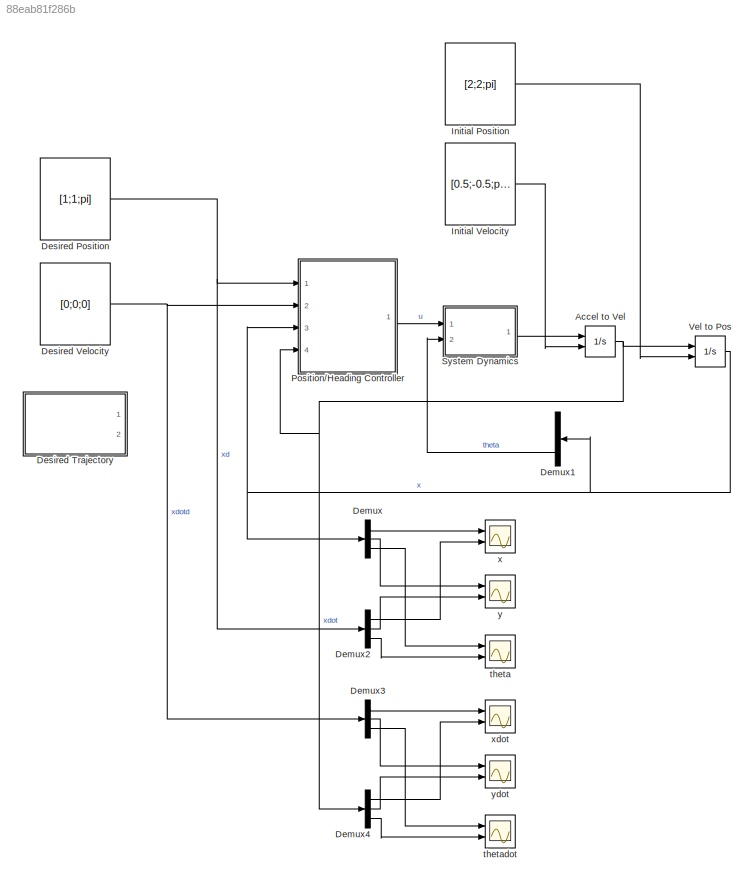
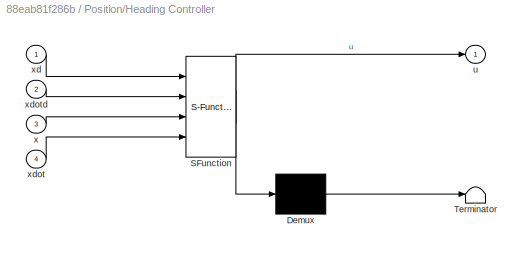
MODEL slx_88eab81f286b
KIND model
CONFIG AbsTol = auto
CONFIG EnableMultiTasking = off
CONFIG FixedStep = 0.1
CONFIG MaxStep = auto
CONFIG MinStep = auto
CONFIG RelTol = 1e-3
CONFIG SampleTimeConstraint = Unconstrained
CONFIG Solver = FixedStepAuto
CONFIG SolverName = FixedStepAuto
CONFIG StartTime = 0.0
CONFIG StopTime = 60
BLOCK [Integrator] Accel to Vel
  InitialCondition = [0;0;0]
  InitialConditionSource = external
  Ports = [2, 1]
BLOCK [Demux] Demux
  DisplayOption = bar
  Outputs = 3
  Ports = [1, 3]
BLOCK [Demux] Demux1
  DisplayOption = bar
  Outputs = 3
  Ports = [1, 3]
BLOCK [Demux] Demux2
  DisplayOption = bar
  Outputs = 3
  Ports = [1, 3]
BLOCK [Demux] Demux3
  DisplayOption = bar
  Outputs = 3
  Ports = [1, 3]
BLOCK [Demux] Demux4
  DisplayOption = bar
  Outputs = 3
  Ports = [1, 3]
BLOCK [Constant] Desired Position
  Value = [1;1;pi]
  VectorParams1D = off
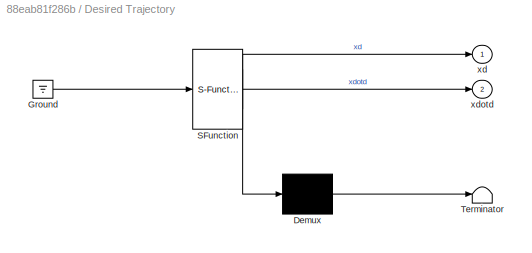
BLOCK [SubSystem] Desired Trajectory
  Commented = on
  ErrorFcn = Stateflow.Translate.translate
  PermitHierarchicalResolution = ExplicitOnly
  Ports = [0, 2]
  RequestExecContextInheritance = off
  SFBlockType = MATLAB Function
  TreatAsAtomicUnit = on
BLOCK [Demux] Desired Trajectory/ Demux 
  Outputs = 1
  Ports = [1, 1]
BLOCK [Ground] Desired Trajectory/ Ground 
BLOCK [S-Function] Desired Trajectory/ SFunction 
  EnableBusSupport = on
  FunctionName = sf_sfun
  PortCounts = [1 3]
  Ports = [1, 3]
  SFcnIsStateOwnerBlock = off
  SFunctionDeploymentMode = off
  Tag = Stateflow S-Function controller_2018a 2
BLOCK [Terminator] Desired Trajectory/ Terminator 
BLOCK [Outport] Desired Trajectory/xd
  IconDisplay = Port number
BLOCK [Outport] Desired Trajectory/xdotd
  IconDisplay = Port number
  Port = 2
BLOCK [Constant] Desired Velocity
  Value = [0;0;0]
  VectorParams1D = off
BLOCK [Constant] Initial Position
  Value = [2;2;pi]
  VectorParams1D = off
BLOCK [Constant] Initial Velocity
  Value = [0.5;-0.5;pi/8]
  VectorParams1D = off
BLOCK [SubSystem] Position//Heading Controller
  ErrorFcn = Stateflow.Translate.translate
  PermitHierarchicalResolution = ExplicitOnly
  Ports = [4, 1]
  RequestExecContextInheritance = off
  SFBlockType = MATLAB Function
  TreatAsAtomicUnit = on
BLOCK [Demux] Position//Heading Controller/ Demux 
  Outputs = 1
  Ports = [1, 1]
BLOCK [S-Function] Position//Heading Controller/ SFunction 
  EnableBusSupport = on
  FunctionName = sf_sfun
  PortCounts = [4 2]
  Ports = [4, 2]
  SFcnIsStateOwnerBlock = off
  SFunctionDeploymentMode = off
  Tag = Stateflow S-Function controller_2018a 1
BLOCK [Terminator] Position//Heading Controller/ Terminator 
BLOCK [Outport] Position//Heading Controller/u
  IconDisplay = Port number
BLOCK [Inport] Position//Heading Controller/x
  IconDisplay = Port number
  Port = 3
BLOCK [Inport] Position//Heading Controller/xd
  IconDisplay = Port number
BLOCK [Inport] Position//Heading Controller/xdot
  IconDisplay = Port number
  Port = 4
BLOCK [Inport] Position//Heading Controller/xdotd
  IconDisplay = Port number
  Port = 2
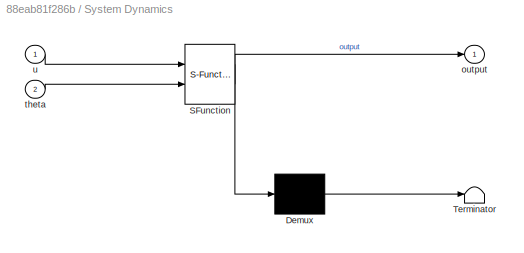
BLOCK [SubSystem] System Dynamics
  ErrorFcn = Stateflow.Translate.translate
  PermitHierarchicalResolution = ExplicitOnly
  Ports = [2, 1]
  RequestExecContextInheritance = off
  SFBlockType = MATLAB Function
  TreatAsAtomicUnit = on
BLOCK [Demux] System Dynamics/ Demux 
  Outputs = 1
  Ports = [1, 1]
BLOCK [S-Function] System Dynamics/ SFunction 
  EnableBusSupport = on
  FunctionName = sf_sfun
  PortCounts = [2 2]
  Ports = [2, 2]
  SFcnIsStateOwnerBlock = off
  SFunctionDeploymentMode = off
  Tag = Stateflow S-Function controller_2018a 3
BLOCK [Terminator] System Dynamics/ Terminator 
BLOCK [Outport] System Dynamics/output
  IconDisplay = Port number
BLOCK [Inport] System Dynamics/theta
  IconDisplay = Port number
  Port = 2
BLOCK [Inport] System Dynamics/u
  IconDisplay = Port number
BLOCK [Integrator] Vel to Pos
  InitialCondition = [0;0;0]
  InitialConditionSource = external
  Ports = [2, 1]
BLOCK [Scope] theta
  Floating = off
  NumInputPorts = 2
  Ports = [2]
  ScopeSpecificationString = Simulink.scopes.TimeScopeBlockCfg('CurrentConfiguration', extmgr.ConfigurationSet(extmgr.Configuration('Core','General UI',true),extmgr.Configuration('Core','Source UI',true),extmgr.Configuration('Sources','WiredSimulink',true,'DataLoggingVariableName','ScopeData2'),extmgr.Configuration('Visuals','Time Domain',true,'SerializedDisplays',{struct('MinYLimReal','3.07546','MaxYLimReal','3.38729','YLabe...<+1429ch>
BLOCK [Scope] thetadot
  Floating = off
  NumInputPorts = 2
  Ports = [2]
  ScopeSpecificationString = Simulink.scopes.TimeScopeBlockCfg('CurrentConfiguration', extmgr.ConfigurationSet(extmgr.Configuration('Core','General UI',true),extmgr.Configuration('Core','Source UI',true),extmgr.Configuration('Sources','WiredSimulink',true,'DataLoggingVariableName','ScopeData1'),extmgr.Configuration('Visuals','Time Domain',true,'SerializedDisplays',{struct('MinYLimReal','-1.03967','MaxYLimReal','0.55185','YLab...<+1410ch>
BLOCK [Scope] x
  Floating = off
  NumInputPorts = 2
  Ports = [2]
  ScopeSpecificationString = Simulink.scopes.TimeScopeBlockCfg('CurrentConfiguration', extmgr.ConfigurationSet(extmgr.Configuration('Core','General UI',true),extmgr.Configuration('Core','Source UI',true),extmgr.Configuration('Sources','WiredSimulink',true),extmgr.Configuration('Visuals','Time Domain',true,'SerializedDisplays',{struct('MinYLimReal','0.66349','MaxYLimReal','2.2497','YLabelReal','','MinYLimMag','0.66349','MaxYLi...<+1387ch>
BLOCK [Scope] xdot
  Floating = off
  NumInputPorts = 2
  Ports = [2]
  ScopeSpecificationString = Simulink.scopes.TimeScopeBlockCfg('CurrentConfiguration', extmgr.ConfigurationSet(extmgr.Configuration('Core','General UI',true),extmgr.Configuration('Core','Source UI',true),extmgr.Configuration('Sources','WiredSimulink',true,'DataLoggingVariableName','ScopeData2'),extmgr.Configuration('Visuals','Time Domain',true,'SerializedDisplays',{struct('MinYLimReal','-0.73311','MaxYLimReal','0.63701','YLab...<+1410ch>
BLOCK [Scope] y
  Floating = off
  NumInputPorts = 2
  Ports = [2]
  ScopeSpecificationString = Simulink.scopes.TimeScopeBlockCfg('CurrentConfiguration', extmgr.ConfigurationSet(extmgr.Configuration('Core','General UI',true),extmgr.Configuration('Core','Source UI',true),extmgr.Configuration('Sources','WiredSimulink',true,'DataLoggingVariableName','ScopeData1'),extmgr.Configuration('Visuals','Time Domain',true,'SerializedDisplays',{struct('MinYLimReal','0.66015','MaxYLimReal','2.14887','YLabe...<+1431ch>
BLOCK [Scope] ydot
  Floating = off
  NumInputPorts = 2
  Ports = [2]
  ScopeSpecificationString = Simulink.scopes.TimeScopeBlockCfg('CurrentConfiguration', extmgr.ConfigurationSet(extmgr.Configuration('Core','General UI',true),extmgr.Configuration('Core','Source UI',true),extmgr.Configuration('Sources','WiredSimulink',true,'DataLoggingVariableName','ScopeData3'),extmgr.Configuration('Visuals','Time Domain',true,'SerializedDisplays',{struct('MinYLimReal','-0.73313','MaxYLimReal','0.19735','YLab...<+1411ch>
NET Accel to Vel:1 -> Demux4:1, Position//Heading Controller:4, Vel to Pos:1
LINE Demux1:3 -> System Dynamics:2
LINE Demux2:1 -> x:2
LINE Demux2:2 -> y:2
LINE Demux2:3 -> theta:2
LINE Demux3:1 -> xdot:1
LINE Demux3:2 -> ydot:1
LINE Demux3:3 -> thetadot:1
LINE Demux4:1 -> xdot:2
LINE Demux4:2 -> ydot:2
LINE Demux4:3 -> thetadot:2
LINE Demux:1 -> x:1
LINE Demux:2 -> y:1
LINE Demux:3 -> theta:1
NET Desired Position:1 -> Demux2:1, Position//Heading Controller:1
NET Desired Velocity:1 -> Demux3:1, Position//Heading Controller:2
LINE Initial Position:1 -> Vel to Pos:2
LINE Initial Velocity:1 -> Accel to Vel:2
LINE Position//Heading Controller:1 -> System Dynamics:1
LINE System Dynamics:1 -> Accel to Vel:1
NET Vel to Pos:1 -> Demux1:1, Demux:1, Position//Heading Controller:3
note: NET lines group one-source signal fan-out (src -> all destinations, sorted); 1:1 wires keep LINE
CHART Position//Heading
Controller states=1 transitions=1
  STATE_LABEL 'eML_blk_kernel()'
  STATE_LABEL 'SCRIPT:\nfunction u = controller(xd,xdotd,x,xdot)\n\nKp = 1*eye(3);\nKd = 1*eye(3);\n\nu = zeros(3,1);\n\nu = (-Kd * (xdot - xdotd)) + (-Kp * (x - xd));'
CHART Desired Trajectory states=1 transitions=1
  STATE_LABEL 'eML_blk_kernel()'
  STATE_LABEL "SCRIPT:\nfunction [xd, xdotd]= trajectory\n\n\nxd = [1,1,pi/2]';\nxdotd = [0,0,0]';"
CHART System
Dynamics states=1 transitions=1
  STATE_LABEL 'eML_blk_kernel()'
  STATE_LABEL "SCRIPT:\nfunction output  = plant(u, theta)\n    L = 1;\n    b = 1; \n    m = 1;\n    I = 1;\n    \n    H = [\n        -1 -1 0 0 1 1 0 0; \n        0 0 -1 -1 0 0 1 1;\n        -L L -b b -L L -b b];\n\n    T = [\n        cos(theta)/m, sin(theta)/m, 0;\n        -sin(theta)/m, cos(theta)/m, 0;\n        0, 0, 1/(2*I)];\n    \n    F = H'*inv(H*H')*inv(T)*u;\n    \n    output = T*H*F;\nend"
